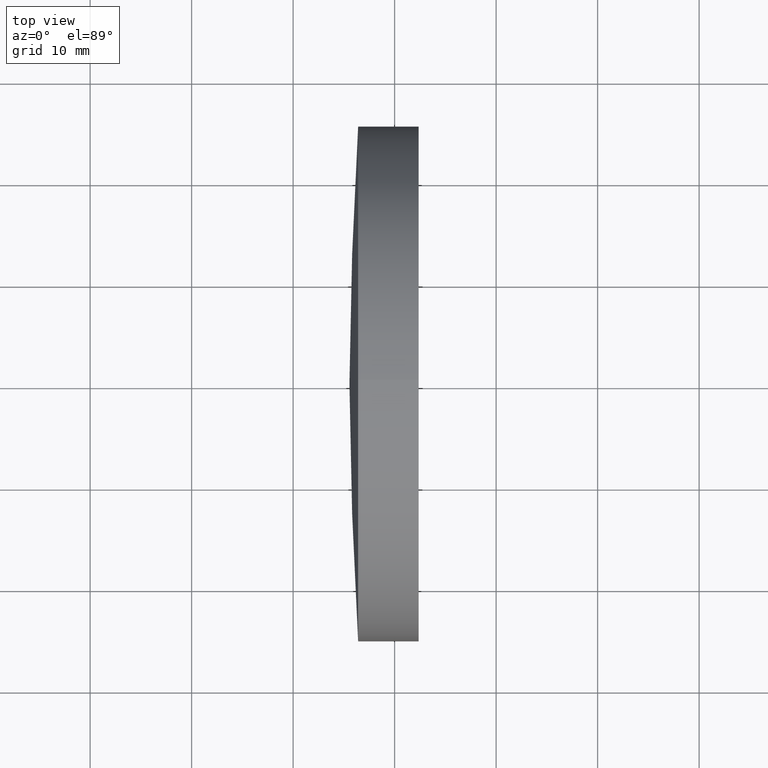
[diagram: clean part render]
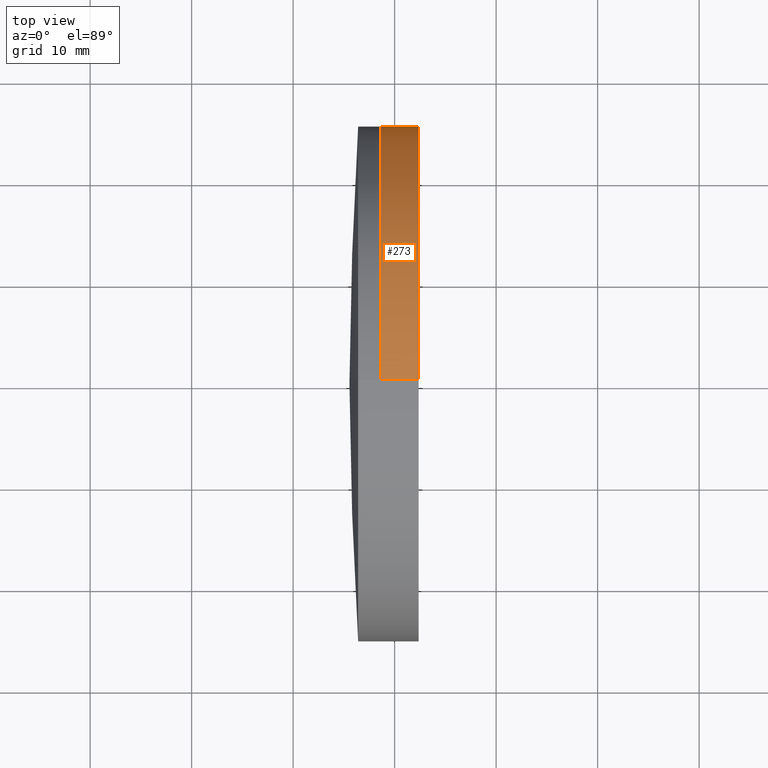
[diagram: same view with one face highlighted and labeled with its STEP entity id]
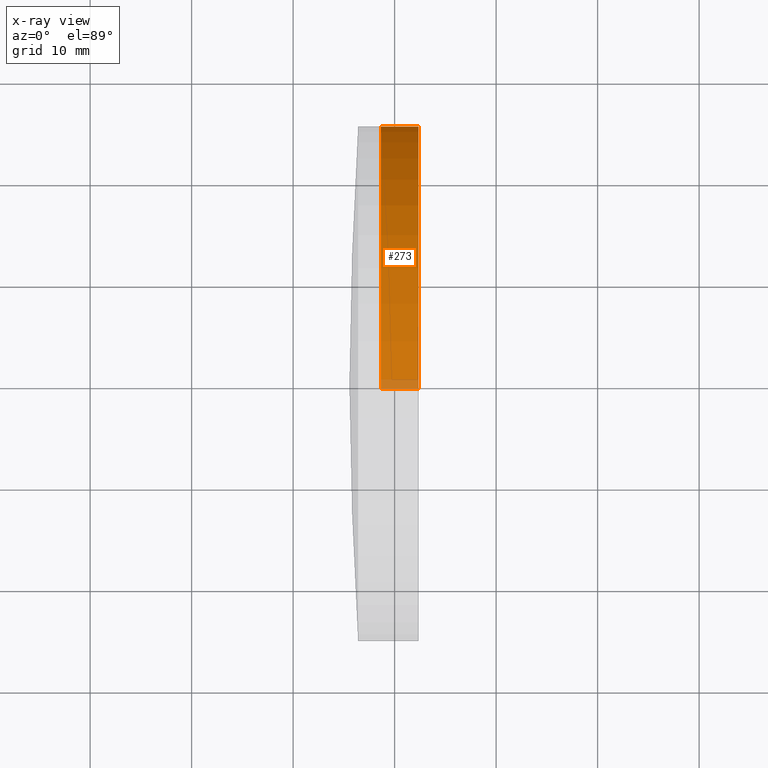
[diagram: x-ray of the same camera — body ghosted, the highlighted face saturated]
A machine part, top view. The second image highlights one B-rep face of the part: STEP entity #273.
The next image is the same camera in x-ray: the body ghosted, the highlighted face saturated — about 3% of this face is hidden behind the body in this view.
In plain terms, the highlighted cylindrical surface (partial cylindrical patch) has radius 25.4 mm, axis along (-1, -0, -0).
Its self-contained STEP definition (entity closure, byte-faithful):
#4 = AXIS2_PLACEMENT_3D ( 'NONE', #327, #51, #197 ) ;
#5 = ORIENTED_EDGE ( 'NONE', *, *, #267, .F. ) ;
#14 = CIRCLE ( 'NONE', #275, 25.39999999999983900 ) ;
#51 = DIRECTION ( 'NONE',  ( -1.000000000000000000, -0.0000000000000000000, -0.0000000000000000000 ) ) ;
#52 = FACE_OUTER_BOUND ( 'NONE', #289, .T. ) ;
#57 = VERTEX_POINT ( 'NONE', #280 ) ;
#58 = ORIENTED_EDGE ( 'NONE', *, *, #237, .T. ) ;
#69 = EDGE_CURVE ( 'NONE', #250, #57, #14, .T. ) ;
#82 = DIRECTION ( 'NONE',  ( 0.0000000000000000000, 0.0000000000000000000, 1.000000000000000000 ) ) ;
#96 = VERTEX_POINT ( 'NONE', #314 ) ;
#104 = CARTESIAN_POINT ( 'NONE',  ( -151.1284751181453600, 0.0000000000000000000, 25.39999999999991700 ) ) ;
#106 = AXIS2_PLACEMENT_3D ( 'NONE', #269, #216, #82 ) ;
#121 = VECTOR ( 'NONE', #131, 1000.000000000000000 ) ;
#128 = LINE ( 'NONE', #307, #121 ) ;
#131 = DIRECTION ( 'NONE',  ( -1.000000000000000000, -0.0000000000000000000, -0.0000000000000000000 ) ) ;
#136 = CARTESIAN_POINT ( 'NONE',  ( -27.64006978316091400, 0.0000000000000000000, 0.0000000000000000000 ) ) ;
#140 = EDGE_CURVE ( 'NONE', #270, #96, #346, .T. ) ;
#144 = DIRECTION ( 'NONE',  ( -1.000000000000000000, -0.0000000000000000000, -0.0000000000000000000 ) ) ;
#164 = VECTOR ( 'NONE', #144, 1000.000000000000000 ) ;
#182 = CARTESIAN_POINT ( 'NONE',  ( -31.36118293043887900, 0.0000000000000000000, 25.40000000000004800 ) ) ;
#185 = DIRECTION ( 'NONE',  ( 0.0000000000000000000, 0.0000000000000000000, 1.000000000000000000 ) ) ;
#190 = CYLINDRICAL_SURFACE ( 'NONE', #106, 25.39999999999991700 ) ;
#197 = DIRECTION ( 'NONE',  ( 0.0000000000000000000, 0.0000000000000000000, 1.000000000000000000 ) ) ;
#202 = DIRECTION ( 'NONE',  ( -1.000000000000000000, -0.0000000000000000000, -0.0000000000000000000 ) ) ;
#212 = CARTESIAN_POINT ( 'NONE',  ( -27.64006978316091400, 0.0000000000000000000, 25.39999999999983900 ) ) ;
#216 = DIRECTION ( 'NONE',  ( -1.000000000000000000, -0.0000000000000000000, -0.0000000000000000000 ) ) ;
#225 = ORIENTED_EDGE ( 'NONE', *, *, #69, .T. ) ;
#237 = EDGE_CURVE ( 'NONE', #57, #96, #128, .T. ) ;
#250 = VERTEX_POINT ( 'NONE', #212 ) ;
#267 = EDGE_CURVE ( 'NONE', #250, #270, #295, .T. ) ;
#269 = CARTESIAN_POINT ( 'NONE',  ( -151.1284751181453600, 0.0000000000000000000, 0.0000000000000000000 ) ) ;
#270 = VERTEX_POINT ( 'NONE', #182 ) ;
#273 = ADVANCED_FACE ( 'NONE', ( #52 ), #190, .T. ) ;
#275 = AXIS2_PLACEMENT_3D ( 'NONE', #136, #202, #185 ) ;
#280 = CARTESIAN_POINT ( 'NONE',  ( -27.64006978316091400, 3.110602869834261500E-015, -25.39999999999983900 ) ) ;
#289 = EDGE_LOOP ( 'NONE', ( #225, #58, #344, #5 ) ) ;
#295 = LINE ( 'NONE', #104, #164 ) ;
#307 = CARTESIAN_POINT ( 'NONE',  ( -151.1284751181453600, 3.110602869834266600E-015, -25.39999999999991700 ) ) ;
#314 = CARTESIAN_POINT ( 'NONE',  ( -31.36118293043887900, 3.110602869834283200E-015, -25.40000000000005500 ) ) ;
#327 = CARTESIAN_POINT ( 'NONE',  ( -31.36118293043887900, 0.0000000000000000000, 0.0000000000000000000 ) ) ;
#344 = ORIENTED_EDGE ( 'NONE', *, *, #140, .F. ) ;
#346 = CIRCLE ( 'NONE', #4, 25.39999999999998800 ) ;